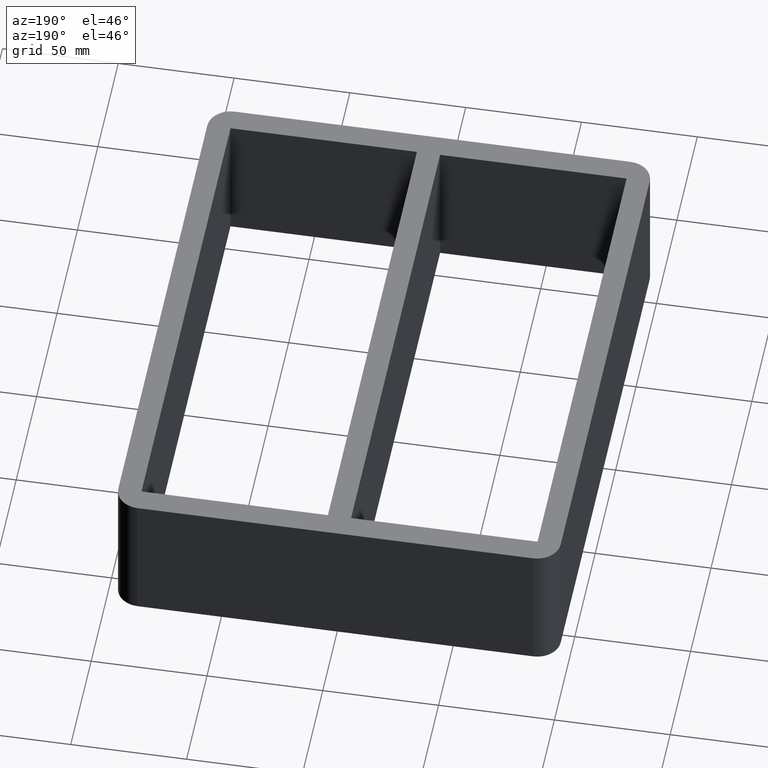
[diagram: clean part render]
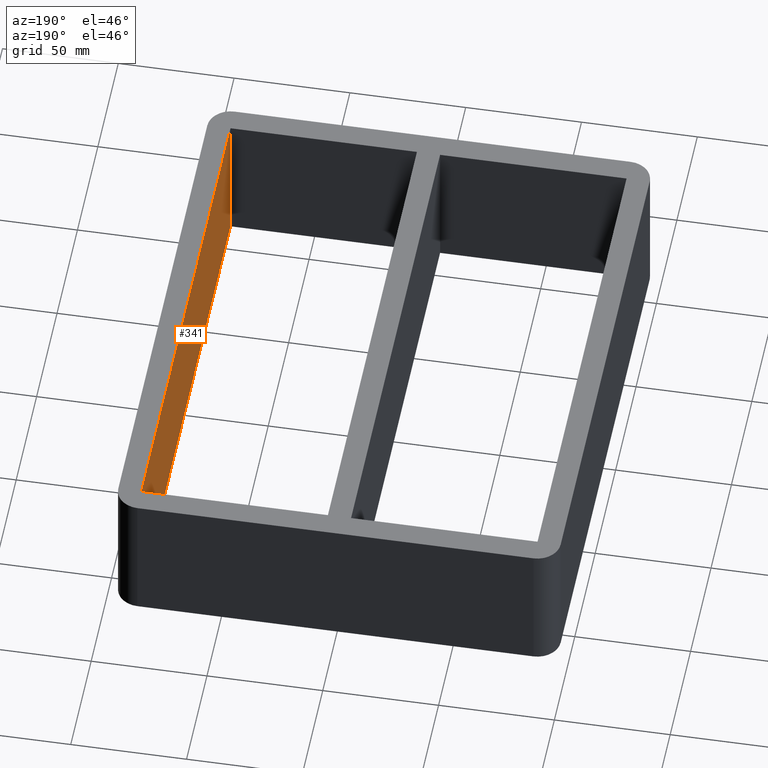
[diagram: same view with one face highlighted and labeled with its STEP entity id]
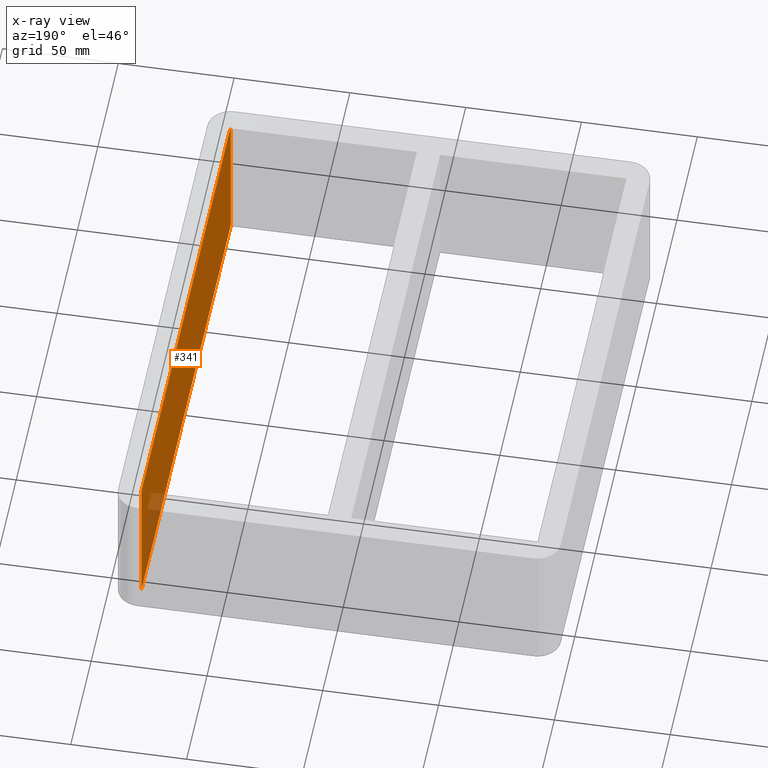
[diagram: x-ray of the same camera — body ghosted, the highlighted face saturated]
A machine part, auxiliary view. The second image highlights one B-rep face of the part: STEP entity #341.
The next image is the same camera in x-ray: the body ghosted, the highlighted face saturated — about 7% of this face is hidden behind the body in this view.
In plain terms, the highlighted planar face has unit normal (1, 0, 0).
Its self-contained STEP definition (entity closure, byte-faithful):
#31=FACE_OUTER_BOUND('',#49,.T.);
#49=EDGE_LOOP('',(#231,#232,#233,#234));
#71=LINE('',#503,#111);
#72=LINE('',#505,#112);
#73=LINE('',#507,#113);
#74=LINE('',#508,#114);
#111=VECTOR('',#409,10.);
#112=VECTOR('',#410,10.);
#113=VECTOR('',#411,10.);
#114=VECTOR('',#412,10.);
#151=VERTEX_POINT('',#501);
#152=VERTEX_POINT('',#502);
#153=VERTEX_POINT('',#504);
#154=VERTEX_POINT('',#506);
#183=EDGE_CURVE('',#151,#152,#71,.T.);
#184=EDGE_CURVE('',#153,#151,#72,.T.);
#185=EDGE_CURVE('',#154,#153,#73,.T.);
#186=EDGE_CURVE('',#154,#152,#74,.T.);
#231=ORIENTED_EDGE('',*,*,#183,.F.);
#232=ORIENTED_EDGE('',*,*,#184,.F.);
#233=ORIENTED_EDGE('',*,*,#185,.F.);
#234=ORIENTED_EDGE('',*,*,#186,.T.);
#327=PLANE('',#379);
#341=ADVANCED_FACE('',(#31),#327,.F.);
#379=AXIS2_PLACEMENT_3D('',#500,#407,#408);
#407=DIRECTION('center_axis',(1.,8.14842586880849E-17,0.));
#408=DIRECTION('ref_axis',(8.14842586880849E-17,-1.,0.));
#409=DIRECTION('',(-8.14842586880849E-17,1.,0.));
#410=DIRECTION('',(0.,0.,-1.));
#411=DIRECTION('',(8.14842586880849E-17,-1.,0.));
#412=DIRECTION('',(0.,0.,-1.));
#500=CARTESIAN_POINT('Origin',(85.4999999999982,108.999999999991,0.));
#501=CARTESIAN_POINT('',(85.4999999999982,-109.000000000009,-60.));
#502=CARTESIAN_POINT('',(85.4999999999982,108.999999999991,-60.));
#503=CARTESIAN_POINT('',(85.4999999999982,54.4999999999952,-60.));
#504=CARTESIAN_POINT('',(85.4999999999982,-109.000000000009,0.));
#505=CARTESIAN_POINT('',(85.4999999999982,-109.000000000009,0.));
#506=CARTESIAN_POINT('',(85.4999999999982,108.999999999991,0.));
#507=CARTESIAN_POINT('',(85.4999999999982,54.4999999999952,0.));
#508=CARTESIAN_POINT('',(85.4999999999982,108.999999999991,0.));